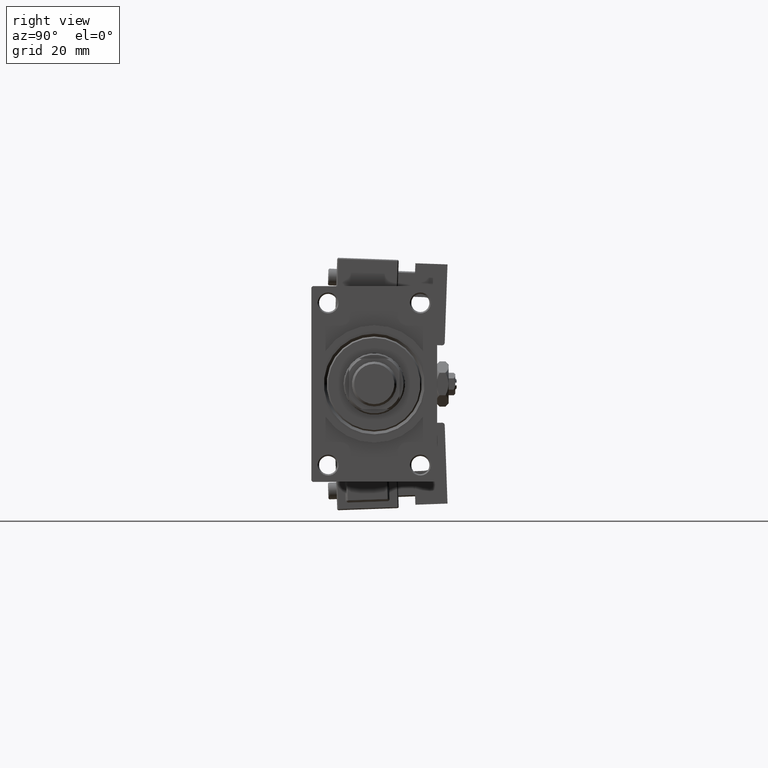
[diagram: clean part render]
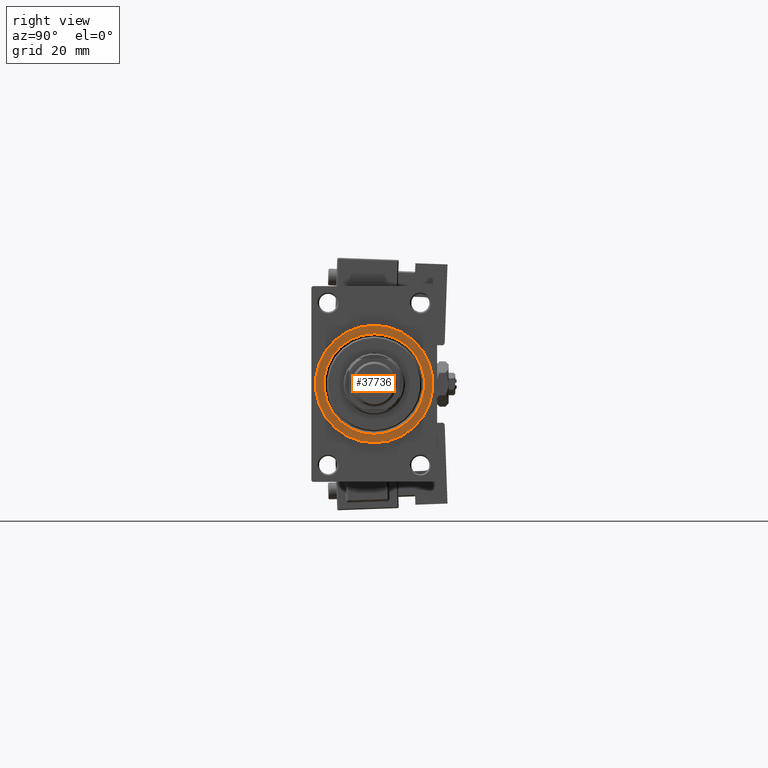
[diagram: same view with one face highlighted and labeled with its STEP entity id]
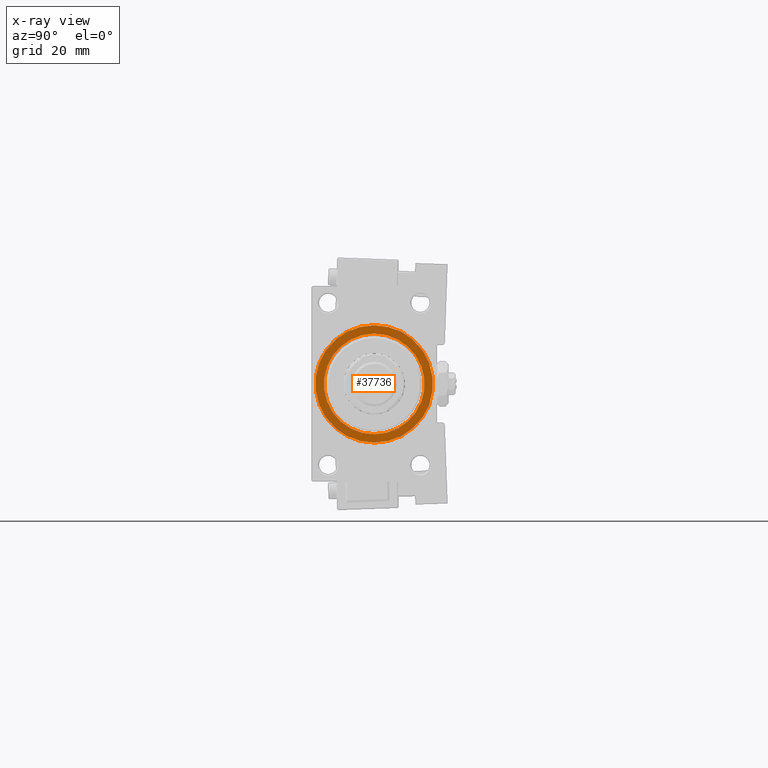
[diagram: x-ray of the same camera — body ghosted, the highlighted face saturated]
A machine part, right view. The second image highlights one B-rep face of the part: STEP entity #37736.
The next image is the same camera in x-ray: the body ghosted, the highlighted face saturated — about 0% of this face is hidden behind the body in this view.
In plain terms, the highlighted planar face has unit normal (1, 0, 0).
Its self-contained STEP definition (entity closure, byte-faithful):
#523 = CIRCLE ( 'NONE', #29894, 21.00000000000000000 ) ;
#1689 = CARTESIAN_POINT ( 'NONE',  ( 183.0000000000000284, 0.000000000000000000, 0.000000000000000000 ) ) ;
#2978 = CARTESIAN_POINT ( 'NONE',  ( 183.0000000000000284, 0.000000000000000000, 0.000000000000000000 ) ) ;
#5877 = VERTEX_POINT ( 'NONE', #32173 ) ;
#6597 = VERTEX_POINT ( 'NONE', #15126 ) ;
#8604 = DIRECTION ( 'NONE',  ( 0.000000000000000000, 0.000000000000000000, -1.000000000000000000 ) ) ;
#8709 = EDGE_CURVE ( 'NONE', #6597, #32105, #20020, .T. ) ;
#9343 = DIRECTION ( 'NONE',  ( 1.000000000000000000, 0.000000000000000000, 0.000000000000000000 ) ) ;
#10366 = DIRECTION ( 'NONE',  ( 0.000000000000000000, 0.000000000000000000, -1.000000000000000000 ) ) ;
#10664 = CARTESIAN_POINT ( 'NONE',  ( 183.0000000000000284, 0.000000000000000000, 0.000000000000000000 ) ) ;
#11501 = ORIENTED_EDGE ( 'NONE', *, *, #8709, .T. ) ;
#12801 = CARTESIAN_POINT ( 'NONE',  ( 183.0000000000000284, 0.000000000000000000, 0.000000000000000000 ) ) ;
#14065 = DIRECTION ( 'NONE',  ( 0.000000000000000000, 0.000000000000000000, -1.000000000000000000 ) ) ;
#15056 = DIRECTION ( 'NONE',  ( 1.000000000000000000, 0.000000000000000000, 0.000000000000000000 ) ) ;
#15126 = CARTESIAN_POINT ( 'NONE',  ( 183.0000000000000284, 0.000000000000000000, 21.00000000000000000 ) ) ;
#17524 = DIRECTION ( 'NONE',  ( 0.000000000000000000, 0.000000000000000000, -1.000000000000000000 ) ) ;
#17793 = CARTESIAN_POINT ( 'NONE',  ( 183.0000000000000284, 2.571758278209441661E-15, -21.00000000000000000 ) ) ;
#19053 = CIRCLE ( 'NONE', #51724, 18.00000000000007105 ) ;
#19136 = CIRCLE ( 'NONE', #44261, 18.00000000000007105 ) ;
#19191 = ORIENTED_EDGE ( 'NONE', *, *, #31507, .T. ) ;
#20020 = CIRCLE ( 'NONE', #20857, 21.00000000000000000 ) ;
#20857 = AXIS2_PLACEMENT_3D ( 'NONE', #12801, #21175, #8604 ) ;
#21175 = DIRECTION ( 'NONE',  ( 1.000000000000000000, 0.000000000000000000, 0.000000000000000000 ) ) ;
#21211 = CARTESIAN_POINT ( 'NONE',  ( 183.0000000000000284, 0.000000000000000000, -18.00000000000007105 ) ) ;
#23252 = VERTEX_POINT ( 'NONE', #21211 ) ;
#24666 = EDGE_LOOP ( 'NONE', ( #27135, #19191 ) ) ;
#25346 = DIRECTION ( 'NONE',  ( 0.000000000000000000, 0.000000000000000000, -1.000000000000000000 ) ) ;
#27135 = ORIENTED_EDGE ( 'NONE', *, *, #51321, .T. ) ;
#27943 = EDGE_CURVE ( 'NONE', #32105, #6597, #523, .T. ) ;
#29894 = AXIS2_PLACEMENT_3D ( 'NONE', #33223, #9343, #25346 ) ;
#31507 = EDGE_CURVE ( 'NONE', #5877, #23252, #19136, .T. ) ;
#32105 = VERTEX_POINT ( 'NONE', #17793 ) ;
#32173 = CARTESIAN_POINT ( 'NONE',  ( 183.0000000000000284, 2.204364238465244894E-15, 18.00000000000007105 ) ) ;
#33096 = EDGE_LOOP ( 'NONE', ( #11501, #38009 ) ) ;
#33223 = CARTESIAN_POINT ( 'NONE',  ( 183.0000000000000284, 0.000000000000000000, 0.000000000000000000 ) ) ;
#37736 = ADVANCED_FACE ( 'NONE', ( #46807, #41386 ), #43135, .T. ) ;
#37913 = DIRECTION ( 'NONE',  ( -1.000000000000000000, -0.000000000000000000, -0.000000000000000000 ) ) ;
#38009 = ORIENTED_EDGE ( 'NONE', *, *, #27943, .T. ) ;
#38724 = AXIS2_PLACEMENT_3D ( 'NONE', #2978, #15056, #17524 ) ;
#41386 = FACE_OUTER_BOUND ( 'NONE', #33096, .T. ) ;
#43135 = PLANE ( 'NONE',  #38724 ) ;
#44261 = AXIS2_PLACEMENT_3D ( 'NONE', #1689, #37913, #10366 ) ;
#46807 = FACE_BOUND ( 'NONE', #24666, .T. ) ;
#49491 = DIRECTION ( 'NONE',  ( -1.000000000000000000, -0.000000000000000000, -0.000000000000000000 ) ) ;
#51321 = EDGE_CURVE ( 'NONE', #23252, #5877, #19053, .T. ) ;
#51724 = AXIS2_PLACEMENT_3D ( 'NONE', #10664, #49491, #14065 ) ;